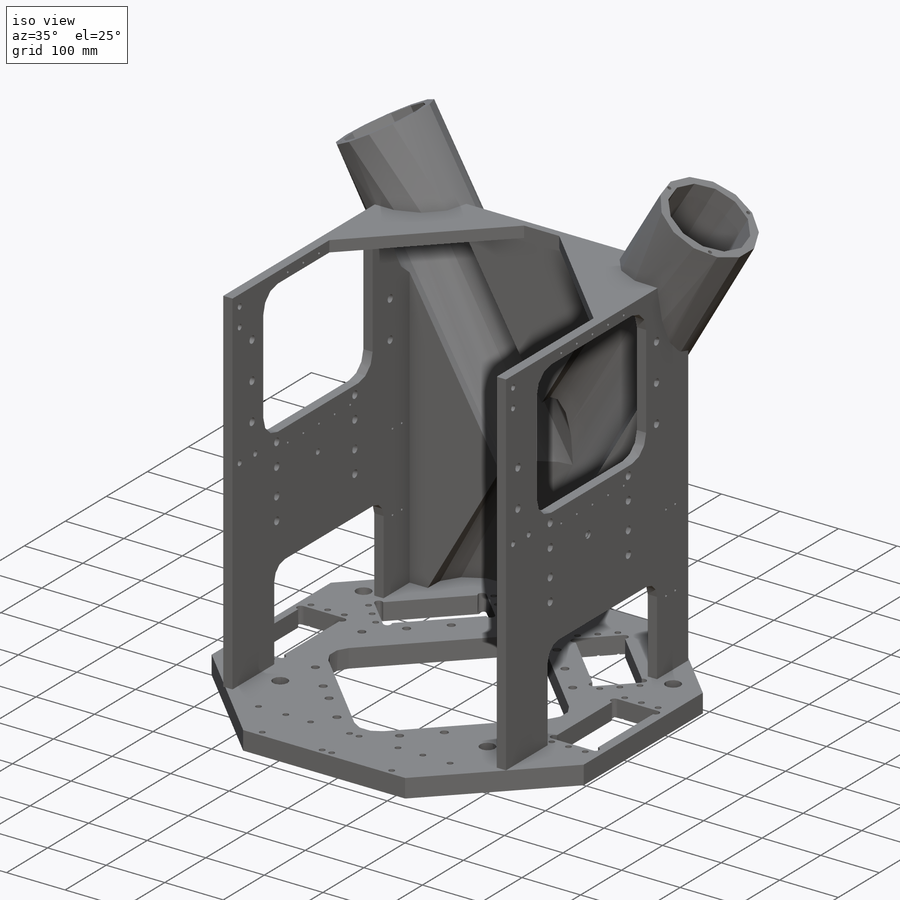
[diagram: iso view]
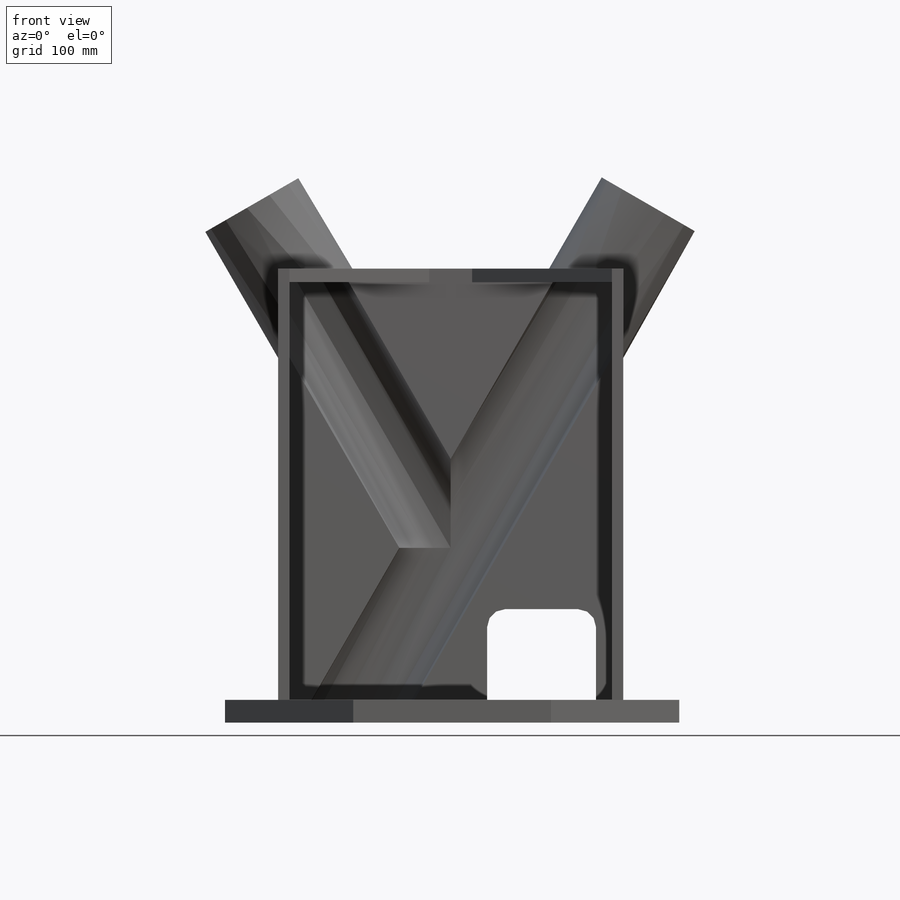
[diagram: front view]
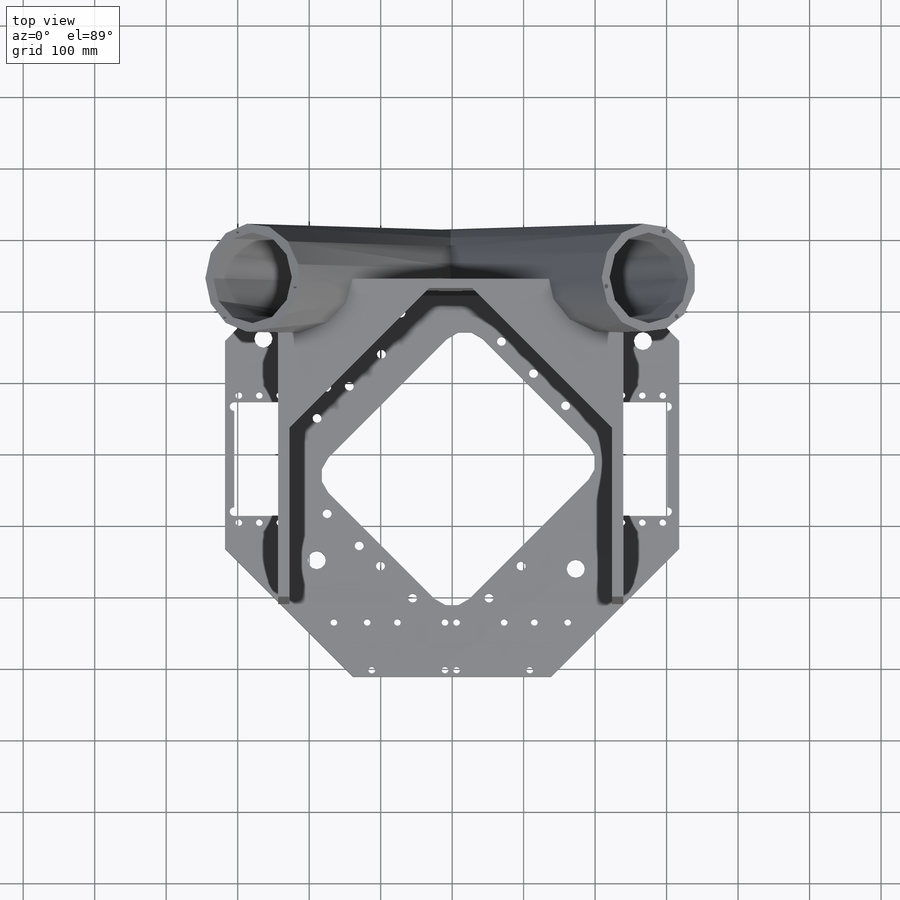
[diagram: top view]
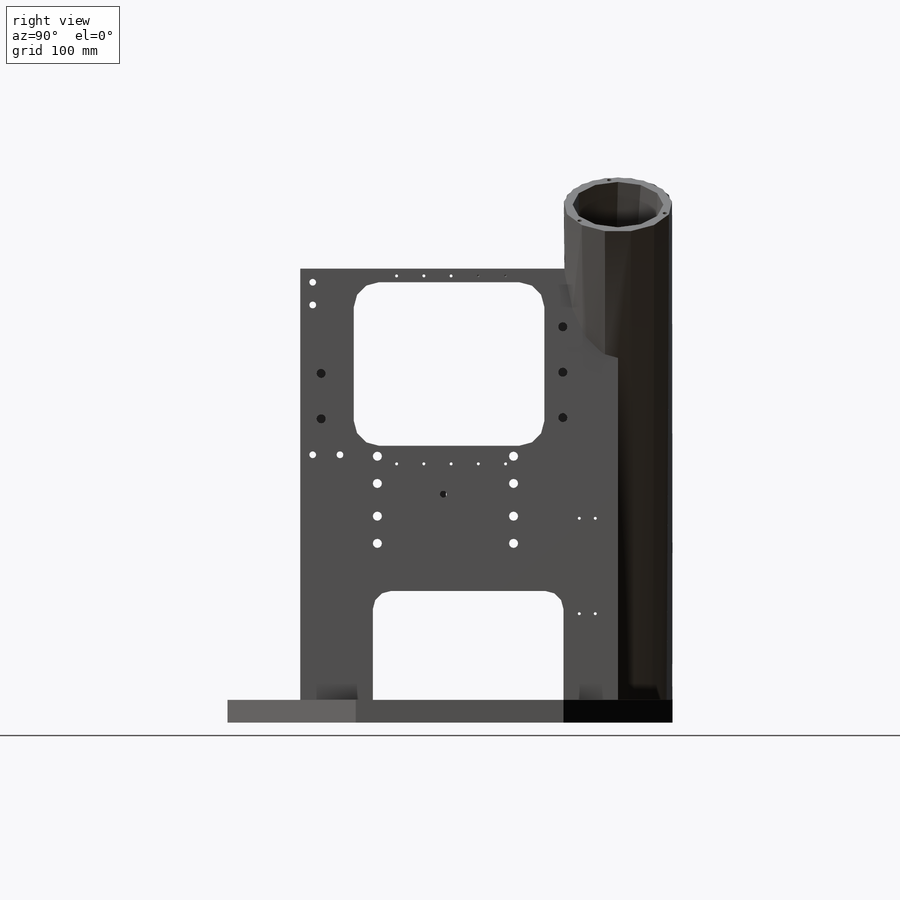
[diagram: right view]
SOLIDWORKS PART (.sldprt)
format: sldprt  version: not decoded by parser v0  size: 1,945,600 bytes
history: native  units: mm
features: sketch x55, hole x18, cut_extrude x11, extrude x7, plane x4, material x1 + 1 further entry (+13 scaffold rows collapsed)
feature tree (110):
  scaffold x13  (default folders/planes/origin — collapsed)
  material  "ASTM A36 Steel"
  "Origin"  ID=-1
  sketch  "Sketch1"  dims[D1=622.3mm D2=635.254mm D3=179.324mm D4=179.324mm D5=152.4mm D6=152.4mm D7=179.324mm D8=152.4mm]
  extrude  "Extrude1"  Depth=31.75mm
  sketch  "Sketch2"  dims[c1.D1=34.925mm c1.D2=279.4mm c1.D3=304.8mm c1.D4=217.424mm c1.D5=157.48mm c2.D2=279.4mm c2.D3=304.8mm c2.D4=157.48mm c2.D5=217.424mm]
  cut_extrude  "Extrude2"  [1 undecoded]
  sketch  "Sketch3"  dims[c1.D1=6.604mm c1.D3=6.35mm c1.D8=6.35mm c1.D9=6.35mm c1.D6=6.35mm c2.D1=70.1294mm c2.D2=159.5374mm c2.D4=177.8mm c2.D5=57.15mm c2.D6=23.876mm c2.D7=215.9mm c2.D8=245.364mm c2.D9=82.55mm c3.D8=92.1766mm c3.D9=404.9268mm c3.D10=587.375mm c3.D11=~70.12877mm c4.D11=~0.242807deg c5.D11=159.5374mm c5.D12=70.1294mm c5.D13=317.5mm c5.D6=16.4846mm]
  cut_extrude  "Extrude3"  [1 undecoded]
  sketch  "Sketch4"  dims[c1.D3=6.604mm c1.D6=6.604mm c1.D1=79.9592mm c1.D2=168.8592mm c1.D4=79.9592mm c1.D5=168.8592mm c2.D1=2.54mm c2.D4=2.54mm]
  cut_extrude  "Extrude4"  Depth=3.302mm
  hole  "3/8-16 Tapped Hole1"  Diameter=9.525mm Depth=31.75mm
  sketch  "Sketch6"  dims[D1=57.15mm D2=177.8mm]
  sketch  "Sketch5"  dims[hole-wizard template sketch: 59 standard entries collapsed; hole parameters kept: c18.Thread Major Dia.=9.525mm c18.Thru Tap Drill Depth=31.75mm]
  hole  "1 (1) Diameter Hole1"  Diameter=25.4mm Depth=31.75mm
  sketch  "Sketch8"  dims[c1.D1=506.984mm c1.D2=163.322mm c1.D3=362.204mm c1.D4=50.8mm c1.D5=38.1mm c1.D6=281.432mm c1.D7=152.4mm c1.D8=53.594mm c1.D9=149.098mm c1.D10=151.3078mm c2.D3=144.7038mm]
  sketch  "Sketch7"  dims[hole-wizard template sketch: 60 standard entries collapsed; hole parameters kept: c18.Thru Hole Depth=31.75mm]
  hole  "3/8-16 Tapped Hole2"  Diameter=9.525mm Depth=31.75mm
  sketch  "Sketch10"  dims[c1.D1=66.675mm c1.D2=9.525mm c1.D3=65.7352mm c1.D4=35.8902mm c1.D5=6.35mm c1.D6=155.956mm c1.D7=46.6598mm c1.D8=17.78mm c1.D9=65.8622mm c1.D10=35.8902mm c1.D11=6.35mm c1.D12=46.6598mm c2.D3=311.404mm c2.D8=327.6092mm c2.D9=394.1572mm]
  sketch  "Sketch9"  dims[hole-wizard template sketch: 59 standard entries collapsed; hole parameters kept: c18.Thread Major Dia.=9.525mm c18.Thru Tap Drill Depth=31.75mm]
  hole  "1/2-20 Tapped Hole1"  Diameter=12.7mm Depth=31.75mm
  sketch  "Sketch12"  dims[D1=110.236mm D2=155.1686mm D3=262.3058mm D4=217.424mm D5=183.388mm D6=187.6552mm D7=228.2952mm D8=142.748mm D9=361.7976mm D10=406.527mm D11=451.4342mm D12=128.651mm D13=173.736mm D14=218.6432mm D15=265.9888mm D16=221.0816mm D17=379.476mm D18=424.4848mm D19=469.392mm D20=158.877mm D21=203.7588mm D22=248.666mm]
  sketch  "Sketch11"  dims[hole-wizard template sketch: 60 standard entries collapsed; hole parameters kept: c18.Thru Tap Drill Depth=31.75mm]
  sketch  "Sketch13"  dims[c1.D1=90.17mm c1.D2=451.104mm c1.D3=15.875mm c1.D4=431.8mm c1.D5=88.9mm c2.D1=78.232mm]
  extrude  "Extrude5"  Depth=603.25mm
  sketch  "Sketch14"  dims[D1=25.4mm D2=266.7mm D3=63.5mm D4=152.4mm]
  cut_extrude  "Extrude6"  [1 undecoded]
  sketch  "Sketch15"  dims[D1=34.925mm D2=90.17mm D3=266.7mm D4=228.6mm D5=355.6mm]
  cut_extrude  "Extrude7"  [1 undecoded]
  sketch  "Sketch16"  dims[D1=12.7mm]
  extrude  "Extrude8"  [1 undecoded]
  sketch  "Sketch17"  dims[c1.D1=276.606mm c2.D1=60.0deg c2.D2=212.598mm c2.D3=554.482mm c2.D4=330.454mm c3.D4=60.0deg c3.D2=554.482mm c3.D3=554.482mm c3.D5=212.598mm c3.D6=241.427mm]
  plane  "Plane1"
  sketch  "Sketch18"  dims[D1=152.4mm D2=127.0mm]
  extrude  "Extrude9"  [1 undecoded]
  plane  "Plane2"
  plane  "Plane3"
  sketch  "Sketch20"  dims[D1=127.0mm D2=152.4mm]
  extrude  "Extrude11"  [1 undecoded]
  sketch  "Sketch21"
  cut_extrude  "Extrude12"  [1 undecoded]
  sketch  "Sketch22"
  cut_extrude  "Extrude13"  [1 undecoded]
  sketch  "Sketch23"  dims[D1=19.05mm]
  cut_extrude  "Extrude14"  [1 undecoded]
  sketch  "Sketch24"  dims[D1=195.58mm D2=195.58mm]
  extrude  "Extrude15"  [1 undecoded]
  sketch  "Sketch25"  dims[D1=195.58mm D2=195.58mm]
  extrude  "Extrude16"  [1 undecoded]
  sketch  "Sketch27"  dims[D1=25.4mm D2=127.0mm D3=152.4mm D4=38.1mm]
  cut_extrude  "Extrude17"  [1 undecoded]
  hole  "#8-32 Tapped Hole1"  Diameter=3.4544mm Depth=18.88744mm
  sketch  "Sketch29"  dims[c1.D1=38.1mm c1.D2=134.874mm c1.D3=262.89mm c1.D4=330.2mm c2.D2=236.474mm]
  sketch  "Sketch28"  dims[hole-wizard template sketch: 29 standard entries collapsed; hole parameters kept: c8.Tap Drill Depth=~18.88744mm c8.Thread Major Dia.=4.1656mm c8.Thread Depth=16.51mm c8.D5=~14.816244mm c8.Drill Angle=118.0deg]
  hole  "#8-32 Tapped Hole2"  Diameter=3.4544mm Depth=18.796mm
  sketch  "Sketch31"
  sketch  "Sketch30"  dims[hole-wizard template sketch: 29 standard entries collapsed; hole parameters kept: c8.Tap Drill Depth=18.796mm c8.Thread Major Dia.=4.1656mm c8.Thread Depth=16.51mm c8.D5=~14.816244mm c8.Drill Angle=118.0deg]
  hole  "#8-32 Tapped Hole3"  Diameter=3.4544mm Depth=21.42744mm
  sketch  "Sketch33"  dims[D1=120.65mm D2=254.0mm D3=22.352mm D4=514.35mm]
  sketch  "Sketch32"  dims[hole-wizard template sketch: 29 standard entries collapsed; hole parameters kept: c8.Tap Drill Depth=~21.42744mm c8.Thread Major Dia.=4.1656mm c8.Thread Depth=19.05mm c8.D5=~14.816244mm c8.Drill Angle=118.0deg]
  hole  "#8-32 Tapped Hole4"  Diameter=3.4544mm Depth=21.42744mm
  sketch  "Sketch35"
  sketch  "Sketch34"  dims[hole-wizard template sketch: 29 standard entries collapsed; hole parameters kept: c8.Tap Drill Depth=~21.42744mm c8.Thread Major Dia.=4.1656mm c8.Thread Depth=19.05mm c8.D5=~14.816244mm c8.Drill Angle=118.0deg]
  hole  "1/2-13 Tapped Hole1"  Diameter=12.7mm Depth=15.875mm
  sketch  "Sketch37"  dims[c1.D1=83.82mm c1.D2=38.1mm c1.D3=133.35mm c1.D4=190.5mm c1.D5=218.948mm c2.D3=400.05mm]
  sketch  "Sketch36"  dims[hole-wizard template sketch: 60 standard entries collapsed; hole parameters kept: c18.Thru Tap Drill Depth=15.875mm]
  hole  "1/2-13 Tapped Hole2"  Diameter=12.7mm Depth=15.875mm
  sketch  "Sketch39"
  sketch  "Sketch38"  dims[hole-wizard template sketch: 60 standard entries collapsed; hole parameters kept: c18.Thru Tap Drill Depth=15.875mm]
  hole  "3/8-16 Tapped Hole3"  Diameter=9.525mm Depth=15.875mm
  sketch  "Sketch41"  dims[c1.D1=31.75mm c1.D2=38.1mm c1.D3=19.05mm c1.D4=17.526mm c1.D5=209.55mm c2.D4=119.126mm]
  sketch  "Sketch40"  dims[hole-wizard template sketch: 59 standard entries collapsed; hole parameters kept: c18.Thread Major Dia.=9.525mm c18.Thru Tap Drill Depth=15.875mm]
  hole  "3/8-16 Tapped Hole4"  Diameter=9.525mm Depth=15.875mm
  sketch  "Sketch43"
  sketch  "Sketch42"  dims[hole-wizard template sketch: 59 standard entries collapsed; hole parameters kept: c18.Thread Major Dia.=9.525mm c18.Thru Tap Drill Depth=15.875mm]
  hole  "1/2-20 Tapped Hole2"  Diameter=12.7mm Depth=15.875mm
  sketch  "Sketch45"  dims[D1=63.5mm D2=392.938mm D3=63.5mm D4=415.29mm D5=77.216mm D6=394.716mm D7=63.5mm]
  sketch  "Sketch44"  dims[hole-wizard template sketch: 60 standard entries collapsed; hole parameters kept: c18.Thru Tap Drill Depth=15.875mm]
  hole  "1/2-20 Tapped Hole3"  Diameter=12.7mm Depth=15.875mm
  sketch  "Sketch47"  dims[c1.D1=63.5mm c1.D2=74.3712mm c1.D3=59.944mm c1.D4=392.938mm c1.D5=394.716mm c1.D6=384.048mm c2.D3=486.156mm c2.D2=149.352mm]
  sketch  "Sketch46"  dims[hole-wizard template sketch: 60 standard entries collapsed; hole parameters kept: c18.Thru Tap Drill Depth=15.875mm]
  sketch  "Sketch48"  dims[c1.D3=12.7mm c1.D1=200.152mm c1.D2=287.528mm c2.D1=301.752mm]
  cut_extrude  "Extrude18"  Depth=3.175mm
  hole  "3/8-16 Tapped Hole5"  Diameter=9.525mm Depth=12.7mm
  sketch  "Sketch50"  dims[D1=287.528mm D2=304.8mm]
  sketch  "Sketch49"  dims[hole-wizard template sketch: 59 standard entries collapsed; hole parameters kept: c18.Thread Major Dia.=9.525mm c18.Thru Tap Drill Depth=12.7mm]
  sketch  "Sketch51"  dims[c1.D1=208.28mm c1.D2=287.528mm c2.D1=309.88mm]
  cut_extrude  "Extrude19"  Depth=3.175mm
  hole  "3/8-16 Tapped Hole6"  Diameter=9.525mm Depth=12.7mm
  sketch  "Sketch53"
  sketch  "Sketch52"  dims[hole-wizard template sketch: 59 standard entries collapsed; hole parameters kept: c18.Thread Major Dia.=9.525mm c18.Thru Tap Drill Depth=12.7mm]
  hole  "1/4-28 Tapped Hole1"  Diameter=5.4102mm Depth=31.16834mm
  sketch  "Sketch55"  dims[c1.D1=139.7mm c1.D2=~237.21218mm c2.D2=70.0deg c2.D3=69.85mm c3.D3=120.0deg c3.D4=~27.633179mm c4.D4=120.0deg]
  sketch  "Sketch54"  dims[hole-wizard template sketch: 28 standard entries collapsed; hole parameters kept: c8.Tap Drill Dia.=5.4102mm c8.Tap Drill Depth=~31.16834mm c8.Thread Major Dia.=6.35mm c8.Thread Depth=15.875mm c8.D5=~14.816244mm c8.Drill Angle=118.0deg]
  hole  "1/4-28 Tapped Hole2"  Diameter=5.4102mm Depth=31.16834mm
  sketch  "Sketch57"  dims[c1.D3=139.7mm c1.D1=~10.054875mm c2.D1=120.0deg c2.D2=~37.918083mm c3.D2=120.0deg c3.D4=~67.587495mm c4.D4=70.0deg]
  sketch  "Sketch56"  dims[hole-wizard template sketch: 28 standard entries collapsed; hole parameters kept: c8.Tap Drill Dia.=5.4102mm c8.Tap Drill Depth=~31.16834mm c8.Thread Major Dia.=6.35mm c8.Thread Depth=15.875mm c8.D5=~14.816244mm c8.Drill Angle=118.0deg]
  plane  "Plane4"
decode coverage: 71 of 91 modeling features carry decoded parameters; 1 rows unclassified (native names shown)
note: ~ marks probable driven/reference dimensions
note: 13 parameter values undecoded
summary: Diameter pulled from absorbed wizard sketch | no parameter record found for 13 features
note: suppression state not decoded; provenance and decode notes live in map.json
